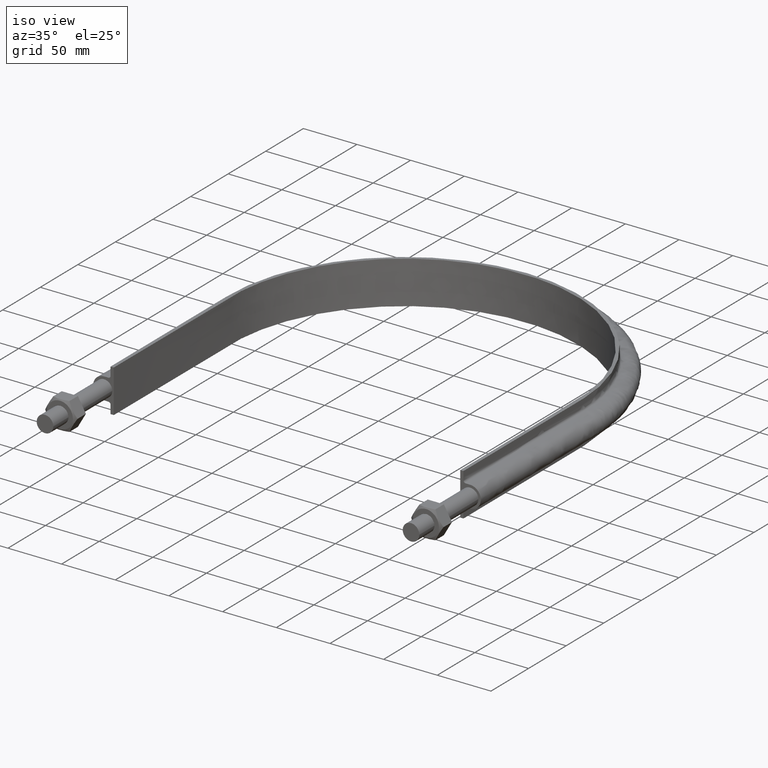
[diagram: clean part render]
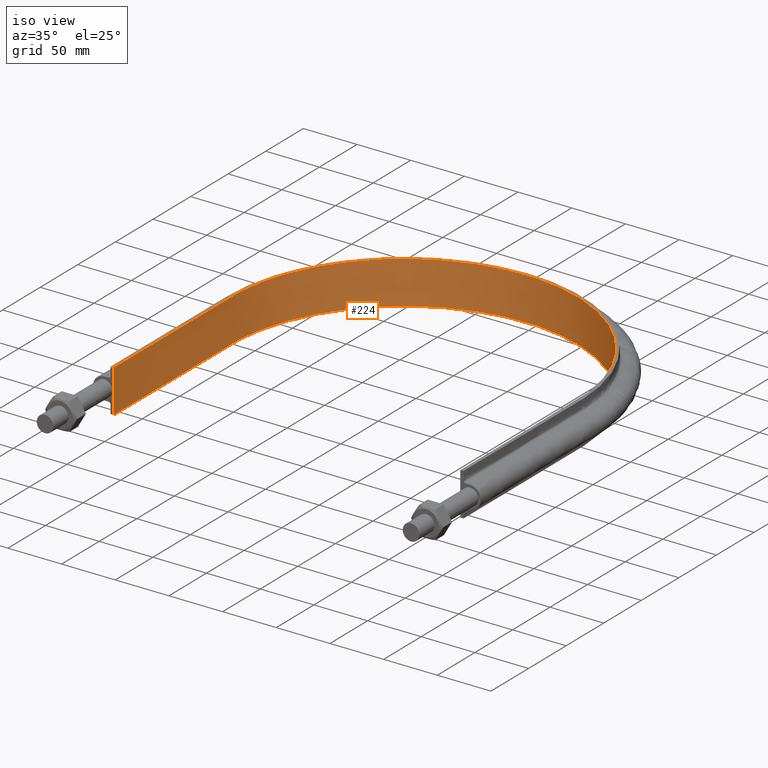
[diagram: same view with one face highlighted and labeled with its STEP entity id]
A machine part, iso view. The second image highlights one B-rep face of the part: STEP entity #224.
In plain terms, the highlighted face is a SurfaceOfExtrusion surface.
Its self-contained STEP definition (entity closure, byte-faithful):
#224 = ADVANCED_FACE( '', ( #272 ), #273, .T. );
#272 = FACE_OUTER_BOUND( '', #949, .T. );
#273 = SURFACE_OF_LINEAR_EXTRUSION( '', #950, #951 );
#949 = EDGE_LOOP( '', ( #1686, #1687, #1688, #1689 ) );
#950 = B_SPLINE_CURVE_WITH_KNOTS( '', 3, ( #1690, #1691, #1692, #1693, #1694, #1695, #1696, #1697, #1698, #1699, #1700, #1701, #1702, #1703, #1704, #1705, #1706, #1707 ), .UNSPECIFIED., .F., .F., ( 4, 3, 1, 1, 1, 1, 1, 1, 1, 1, 3, 4 ), ( -11.0000000000000, -10.0000000000000, -9.00000000000000, -8.00000000000000, -7.00000000000000, -6.00000000000000, -5.00000000000000, -4.00000000000000, -3.00000000000000, -2.00000000000000, -1.00000000000000, 0.000000000000000 ), .UNSPECIFIED. );
#951 = VECTOR( '', #1708, 1000.00000000000 );
#1686 = ORIENTED_EDGE( '', *, *, #1927, .T. );
#1687 = ORIENTED_EDGE( '', *, *, #1937, .F. );
#1688 = ORIENTED_EDGE( '', *, *, #1934, .F. );
#1689 = ORIENTED_EDGE( '', *, *, #1938, .T. );
#1690 = CARTESIAN_POINT( '', ( -161.400000000000, 78.5100000000001, -521.637844225282 ) );
#1691 = CARTESIAN_POINT( '', ( -161.400000000000, 130.543333333333, -521.637844225282 ) );
#1692 = CARTESIAN_POINT( '', ( -161.400000000000, 182.576666666667, -521.637844225282 ) );
#1693 = CARTESIAN_POINT( '', ( -161.400000000000, 234.610000000000, -521.637844225282 ) );
#1694 = CARTESIAN_POINT( '', ( -161.400000000000, 253.377198593415, -521.637844225282 ) );
#1695 = CARTESIAN_POINT( '', ( -154.777803559236, 290.949605256109, -521.637844225282 ) );
#1696 = CARTESIAN_POINT( '', ( -126.176021511748, 340.482890510073, -521.637844225282 ) );
#1697 = CARTESIAN_POINT( '', ( -82.3555491101910, 377.254353924046, -521.637844225282 ) );
#1698 = CARTESIAN_POINT( '', ( -28.6017820474880, 396.818694818595, -521.637844225282 ) );
#1699 = CARTESIAN_POINT( '', ( 28.6017820474882, 396.818694818595, -521.637844225282 ) );
#1700 = CARTESIAN_POINT( '', ( 82.3555491101912, 377.254353924046, -521.637844225282 ) );
#1701 = CARTESIAN_POINT( '', ( 126.176021511748, 340.482890510073, -521.637844225282 ) );
#1702 = CARTESIAN_POINT( '', ( 154.777803559236, 290.949605256109, -521.637844225282 ) );
#1703 = CARTESIAN_POINT( '', ( 161.400000000000, 253.377198593415, -521.637844225282 ) );
#1704 = CARTESIAN_POINT( '', ( 161.400000000000, 234.610000000000, -521.637844225282 ) );
#1705 = CARTESIAN_POINT( '', ( 161.400000000000, 182.576666666667, -521.637844225282 ) );
#1706 = CARTESIAN_POINT( '', ( 161.400000000000, 130.543333333333, -521.637844225282 ) );
#1707 = CARTESIAN_POINT( '', ( 161.400000000000, 78.5100000000000, -521.637844225282 ) );
#1708 = DIRECTION( '', ( 0.000000000000000, 0.000000000000000, 1.00000000000000 ) );
#1927 = EDGE_CURVE( '', #2006, #2007, #2008, .T. );
#1934 = EDGE_CURVE( '', #2018, #2019, #2020, .T. );
#1937 = EDGE_CURVE( '', #2019, #2007, #2023, .T. );
#1938 = EDGE_CURVE( '', #2018, #2006, #2024, .T. );
#2006 = VERTEX_POINT( '', #2462 );
#2007 = VERTEX_POINT( '', #2463 );
#2008 = LINE( '', #2464, #2465 );
#2018 = VERTEX_POINT( '', #2619 );
#2019 = VERTEX_POINT( '', #2620 );
#2020 = LINE( '', #2621, #2622 );
#2023 = B_SPLINE_CURVE_WITH_KNOTS( '', 3, ( #2627, #2628, #2629, #2630, #2631, #2632, #2633, #2634, #2635, #2636, #2637, #2638, #2639, #2640, #2641, #2642, #2643, #2644 ), .UNSPECIFIED., .F., .F., ( 4, 3, 1, 1, 1, 1, 1, 1, 1, 1, 3, 4 ), ( -11.0000000000000, -10.0000000000000, -9.00000000000000, -8.00000000000000, -7.00000000000000, -6.00000000000000, -5.00000000000000, -4.00000000000000, -3.00000000000000, -2.00000000000000, -1.00000000000000, 0.000000000000000 ), .UNSPECIFIED. );
#2024 = B_SPLINE_CURVE_WITH_KNOTS( '', 3, ( #2645, #2646, #2647, #2648, #2649, #2650, #2651, #2652, #2653, #2654, #2655, #2656, #2657, #2658, #2659, #2660, #2661, #2662 ), .UNSPECIFIED., .F., .F., ( 4, 3, 1, 1, 1, 1, 1, 1, 1, 1, 3, 4 ), ( -11.0000000000000, -10.0000000000000, -9.00000000000000, -8.00000000000000, -7.00000000000000, -6.00000000000000, -5.00000000000000, -4.00000000000000, -3.00000000000000, -2.00000000000000, -1.00000000000000, 0.000000000000000 ), .UNSPECIFIED. );
#2462 = CARTESIAN_POINT( '', ( 161.400000000000, 78.5100000000000, -20.0000000000000 ) );
#2463 = CARTESIAN_POINT( '', ( 161.400000000000, 78.5100000000001, 20.0000000000000 ) );
#2464 = CARTESIAN_POINT( '', ( 161.400000000000, 78.5100000000000, -521.637844225282 ) );
#2465 = VECTOR( '', #2933, 1000.00000000000 );
#2619 = CARTESIAN_POINT( '', ( -161.400000000000, 78.5100000000001, -20.0000000000000 ) );
#2620 = CARTESIAN_POINT( '', ( -161.400000000000, 78.5100000000001, 20.0000000000000 ) );
#2621 = CARTESIAN_POINT( '', ( -161.400000000000, 78.5100000000001, -521.637844225282 ) );
#2622 = VECTOR( '', #2938, 1000.00000000000 );
#2627 = CARTESIAN_POINT( '', ( -161.400000000000, 78.5100000000001, 20.0000000000000 ) );
#2628 = CARTESIAN_POINT( '', ( -161.400000000000, 130.543333333333, 20.0000000000000 ) );
#2629 = CARTESIAN_POINT( '', ( -161.400000000000, 182.576666666667, 20.0000000000000 ) );
#2630 = CARTESIAN_POINT( '', ( -161.400000000000, 234.610000000000, 20.0000000000000 ) );
#2631 = CARTESIAN_POINT( '', ( -161.400000000000, 253.377198593415, 20.0000000000000 ) );
#2632 = CARTESIAN_POINT( '', ( -154.777803559236, 290.949605256109, 20.0000000000000 ) );
#2633 = CARTESIAN_POINT( '', ( -126.176021511748, 340.482890510073, 20.0000000000000 ) );
#2634 = CARTESIAN_POINT( '', ( -82.3555491101910, 377.254353924046, 20.0000000000000 ) );
#2635 = CARTESIAN_POINT( '', ( -28.6017820474880, 396.818694818595, 20.0000000000000 ) );
#2636 = CARTESIAN_POINT( '', ( 28.6017820474882, 396.818694818595, 20.0000000000000 ) );
#2637 = CARTESIAN_POINT( '', ( 82.3555491101912, 377.254353924046, 20.0000000000000 ) );
#2638 = CARTESIAN_POINT( '', ( 126.176021511748, 340.482890510073, 20.0000000000000 ) );
#2639 = CARTESIAN_POINT( '', ( 154.777803559236, 290.949605256109, 20.0000000000000 ) );
#2640 = CARTESIAN_POINT( '', ( 161.400000000000, 253.377198593415, 20.0000000000000 ) );
#2641 = CARTESIAN_POINT( '', ( 161.400000000000, 234.610000000000, 20.0000000000000 ) );
#2642 = CARTESIAN_POINT( '', ( 161.400000000000, 182.576666666667, 20.0000000000000 ) );
#2643 = CARTESIAN_POINT( '', ( 161.400000000000, 130.543333333333, 20.0000000000000 ) );
#2644 = CARTESIAN_POINT( '', ( 161.400000000000, 78.5100000000000, 20.0000000000000 ) );
#2645 = CARTESIAN_POINT( '', ( -161.400000000000, 78.5100000000001, -20.0000000000000 ) );
#2646 = CARTESIAN_POINT( '', ( -161.400000000000, 130.543333333333, -20.0000000000000 ) );
#2647 = CARTESIAN_POINT( '', ( -161.400000000000, 182.576666666667, -20.0000000000000 ) );
#2648 = CARTESIAN_POINT( '', ( -161.400000000000, 234.610000000000, -20.0000000000000 ) );
#2649 = CARTESIAN_POINT( '', ( -161.400000000000, 253.377198593415, -20.0000000000000 ) );
#2650 = CARTESIAN_POINT( '', ( -154.777803559236, 290.949605256109, -20.0000000000000 ) );
#2651 = CARTESIAN_POINT( '', ( -126.176021511748, 340.482890510073, -20.0000000000000 ) );
#2652 = CARTESIAN_POINT( '', ( -82.3555491101910, 377.254353924046, -20.0000000000000 ) );
#2653 = CARTESIAN_POINT( '', ( -28.6017820474880, 396.818694818595, -20.0000000000000 ) );
#2654 = CARTESIAN_POINT( '', ( 28.6017820474882, 396.818694818595, -20.0000000000000 ) );
#2655 = CARTESIAN_POINT( '', ( 82.3555491101912, 377.254353924046, -20.0000000000000 ) );
#2656 = CARTESIAN_POINT( '', ( 126.176021511748, 340.482890510073, -20.0000000000000 ) );
#2657 = CARTESIAN_POINT( '', ( 154.777803559236, 290.949605256109, -20.0000000000000 ) );
#2658 = CARTESIAN_POINT( '', ( 161.400000000000, 253.377198593415, -20.0000000000000 ) );
#2659 = CARTESIAN_POINT( '', ( 161.400000000000, 234.610000000000, -20.0000000000000 ) );
#2660 = CARTESIAN_POINT( '', ( 161.400000000000, 182.576666666667, -20.0000000000000 ) );
#2661 = CARTESIAN_POINT( '', ( 161.400000000000, 130.543333333333, -20.0000000000000 ) );
#2662 = CARTESIAN_POINT( '', ( 161.400000000000, 78.5100000000000, -20.0000000000000 ) );
#2933 = DIRECTION( '', ( 0.000000000000000, 0.000000000000000, 1.00000000000000 ) );
#2938 = DIRECTION( '', ( 0.000000000000000, 0.000000000000000, 1.00000000000000 ) );